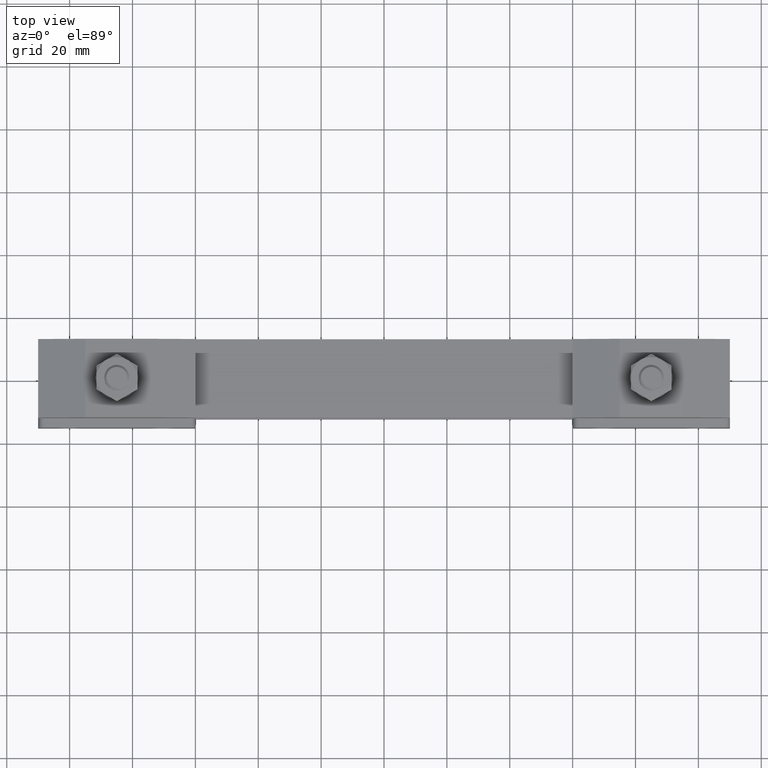
[diagram: clean part render]
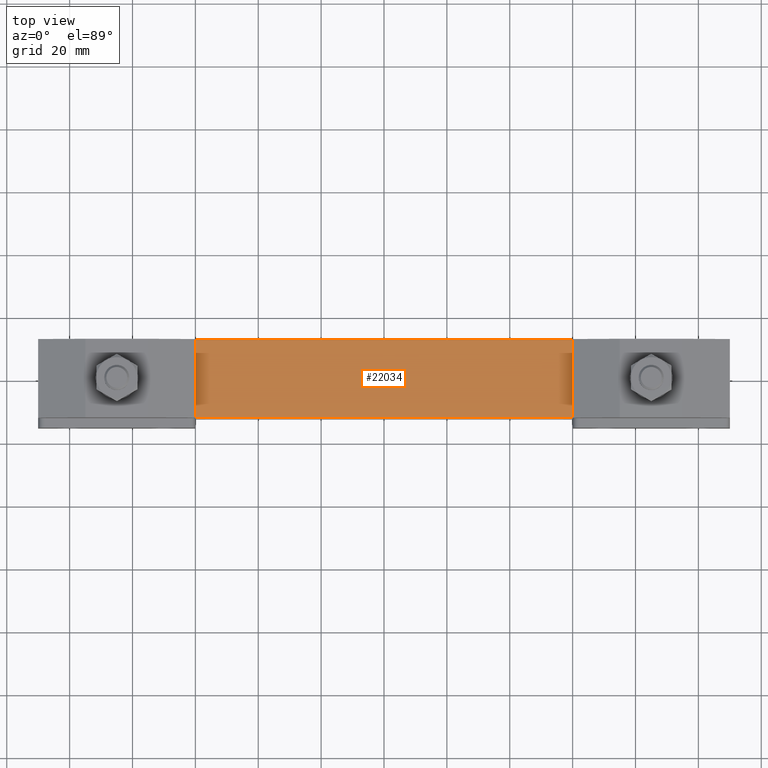
[diagram: same view with one face highlighted and labeled with its STEP entity id]
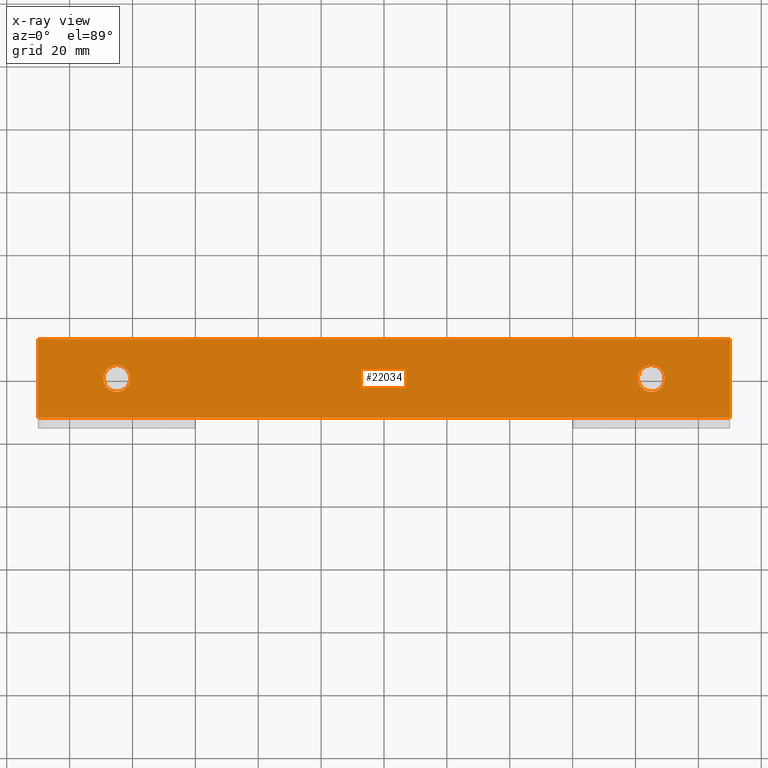
[diagram: x-ray of the same camera — body ghosted, the highlighted face saturated]
A machine part, top view. The second image highlights one B-rep face of the part: STEP entity #22034.
The next image is the same camera in x-ray: the body ghosted, the highlighted face saturated — about 0% of this face is hidden behind the body in this view.
In plain terms, the highlighted planar face has unit normal (-0, 0, 1).
Its self-contained STEP definition (entity closure, byte-faithful):
#78 = VERTEX_POINT ( 'NONE', #4701 ) ;
#457 = ORIENTED_EDGE ( 'NONE', *, *, #20719, .T. ) ;
#890 = LINE ( 'NONE', #21276, #17175 ) ;
#1092 = ORIENTED_EDGE ( 'NONE', *, *, #9061, .T. ) ;
#1437 = ORIENTED_EDGE ( 'NONE', *, *, #14394, .T. ) ;
#2002 = DIRECTION ( 'NONE',  ( -0.0000000000000000000, 1.000000000000000000, -0.0000000000000000000 ) ) ;
#2199 = VERTEX_POINT ( 'NONE', #15431 ) ;
#2761 = VERTEX_POINT ( 'NONE', #11864 ) ;
#4155 = DIRECTION ( 'NONE',  ( -1.000000000000000000, 0.0000000000000000000, 0.0000000000000000000 ) ) ;
#4263 = VECTOR ( 'NONE', #2002, 1000.000000000000000 ) ;
#4589 = CARTESIAN_POINT ( 'NONE',  ( -109.9999999999999900, 12.49999999999999300, 28.49999999999997900 ) ) ;
#4701 = CARTESIAN_POINT ( 'NONE',  ( -109.9999999999999900, -12.50000000000000700, 28.49999999999997900 ) ) ;
#4772 = DIRECTION ( 'NONE',  ( 0.0000000000000000000, -1.000000000000000000, 0.0000000000000000000 ) ) ;
#5234 = PLANE ( 'NONE',  #8122 ) ;
#5383 = DIRECTION ( 'NONE',  ( 1.000000000000000000, 0.0000000000000000000, 0.0000000000000000000 ) ) ;
#5460 = VECTOR ( 'NONE', #16796, 1000.000000000000000 ) ;
#6596 = CARTESIAN_POINT ( 'NONE',  ( 89.25000000000001400, 2.133878290461803800E-014, 28.49999999999997900 ) ) ;
#7063 = CARTESIAN_POINT ( 'NONE',  ( -109.9999999999999900, -12.50000000000000700, 28.49999999999997900 ) ) ;
#7719 = VERTEX_POINT ( 'NONE', #6596 ) ;
#8122 = AXIS2_PLACEMENT_3D ( 'NONE', #7063, #20850, #10482 ) ;
#8968 = ORIENTED_EDGE ( 'NONE', *, *, #16979, .T. ) ;
#9061 = EDGE_CURVE ( 'NONE', #2761, #13472, #19488, .T. ) ;
#9215 = CIRCLE ( 'NONE', #18890, 4.250000000000003600 ) ;
#9564 = EDGE_CURVE ( 'NONE', #18194, #2199, #19732, .T. ) ;
#9833 = DIRECTION ( 'NONE',  ( -0.0000000000000000000, -0.0000000000000000000, -1.000000000000000000 ) ) ;
#10178 = DIRECTION ( 'NONE',  ( -1.000000000000000000, 0.0000000000000000000, 0.0000000000000000000 ) ) ;
#10482 = DIRECTION ( 'NONE',  ( 1.000000000000000000, 0.0000000000000000000, 0.0000000000000000000 ) ) ;
#11477 = FACE_BOUND ( 'NONE', #20049, .T. ) ;
#11586 = CARTESIAN_POINT ( 'NONE',  ( -109.9999999999999900, 12.49999999999999300, 28.49999999999997900 ) ) ;
#11864 = CARTESIAN_POINT ( 'NONE',  ( -80.74999999999997200, 5.204748896376255600E-016, 28.49999999999997900 ) ) ;
#11997 = DIRECTION ( 'NONE',  ( -0.0000000000000000000, -0.0000000000000000000, -1.000000000000000000 ) ) ;
#12950 = EDGE_LOOP ( 'NONE', ( #8968, #22050 ) ) ;
#13291 = AXIS2_PLACEMENT_3D ( 'NONE', #16076, #14548, #4155 ) ;
#13472 = VERTEX_POINT ( 'NONE', #21053 ) ;
#13723 = DIRECTION ( 'NONE',  ( -1.000000000000000000, 0.0000000000000000000, 0.0000000000000000000 ) ) ;
#13884 = CARTESIAN_POINT ( 'NONE',  ( 85.00000000000000000, 2.081830801498041300E-014, 28.49999999999997900 ) ) ;
#14109 = CIRCLE ( 'NONE', #19033, 4.250000000000003600 ) ;
#14213 = CIRCLE ( 'NONE', #16534, 4.250000000000003600 ) ;
#14394 = EDGE_CURVE ( 'NONE', #78, #18194, #890, .T. ) ;
#14548 = DIRECTION ( 'NONE',  ( -0.0000000000000000000, -0.0000000000000000000, -1.000000000000000000 ) ) ;
#15217 = LINE ( 'NONE', #4589, #5460 ) ;
#15218 = CARTESIAN_POINT ( 'NONE',  ( -84.99999999999997200, 0.0000000000000000000, 28.49999999999997900 ) ) ;
#15293 = ORIENTED_EDGE ( 'NONE', *, *, #15810, .T. ) ;
#15431 = CARTESIAN_POINT ( 'NONE',  ( 110.0000000000000100, 12.49999999999999300, 28.49999999999997900 ) ) ;
#15810 = EDGE_CURVE ( 'NONE', #2199, #21450, #15217, .T. ) ;
#16076 = CARTESIAN_POINT ( 'NONE',  ( -84.99999999999997200, 0.0000000000000000000, 28.49999999999997900 ) ) ;
#16394 = EDGE_CURVE ( 'NONE', #7719, #17581, #14109, .T. ) ;
#16534 = AXIS2_PLACEMENT_3D ( 'NONE', #15218, #9833, #22185 ) ;
#16796 = DIRECTION ( 'NONE',  ( -1.000000000000000000, -0.0000000000000000000, -0.0000000000000000000 ) ) ;
#16853 = FACE_OUTER_BOUND ( 'NONE', #19960, .T. ) ;
#16979 = EDGE_CURVE ( 'NONE', #17581, #7719, #9215, .T. ) ;
#16983 = CARTESIAN_POINT ( 'NONE',  ( -109.9999999999999900, 12.49999999999999300, 28.49999999999997900 ) ) ;
#17175 = VECTOR ( 'NONE', #5383, 1000.000000000000000 ) ;
#17542 = CARTESIAN_POINT ( 'NONE',  ( 80.75000000000000000, 2.081830801498041300E-014, 28.49999999999997900 ) ) ;
#17581 = VERTEX_POINT ( 'NONE', #17542 ) ;
#18194 = VERTEX_POINT ( 'NONE', #18848 ) ;
#18420 = ORIENTED_EDGE ( 'NONE', *, *, #21901, .T. ) ;
#18848 = CARTESIAN_POINT ( 'NONE',  ( 110.0000000000000100, -12.50000000000000700, 28.49999999999997900 ) ) ;
#18890 = AXIS2_PLACEMENT_3D ( 'NONE', #22435, #11997, #13723 ) ;
#19033 = AXIS2_PLACEMENT_3D ( 'NONE', #13884, #22547, #10178 ) ;
#19488 = CIRCLE ( 'NONE', #13291, 4.250000000000003600 ) ;
#19732 = LINE ( 'NONE', #21269, #4263 ) ;
#19960 = EDGE_LOOP ( 'NONE', ( #18420, #1437, #21155, #15293 ) ) ;
#20049 = EDGE_LOOP ( 'NONE', ( #457, #1092 ) ) ;
#20669 = VECTOR ( 'NONE', #4772, 1000.000000000000000 ) ;
#20719 = EDGE_CURVE ( 'NONE', #13472, #2761, #14213, .T. ) ;
#20850 = DIRECTION ( 'NONE',  ( -0.0000000000000000000, 0.0000000000000000000, 1.000000000000000000 ) ) ;
#21053 = CARTESIAN_POINT ( 'NONE',  ( -89.24999999999998600, 0.0000000000000000000, 28.49999999999997900 ) ) ;
#21155 = ORIENTED_EDGE ( 'NONE', *, *, #9564, .T. ) ;
#21199 = FACE_BOUND ( 'NONE', #12950, .T. ) ;
#21269 = CARTESIAN_POINT ( 'NONE',  ( 110.0000000000000100, 12.49999999999999300, 28.49999999999997900 ) ) ;
#21276 = CARTESIAN_POINT ( 'NONE',  ( -109.9999999999999900, -12.50000000000000700, 28.49999999999997900 ) ) ;
#21450 = VERTEX_POINT ( 'NONE', #11586 ) ;
#21744 = LINE ( 'NONE', #16983, #20669 ) ;
#21901 = EDGE_CURVE ( 'NONE', #21450, #78, #21744, .T. ) ;
#22034 = ADVANCED_FACE ( 'NONE', ( #16853, #21199, #11477 ), #5234, .T. ) ;
#22050 = ORIENTED_EDGE ( 'NONE', *, *, #16394, .T. ) ;
#22185 = DIRECTION ( 'NONE',  ( -1.000000000000000000, 0.0000000000000000000, 0.0000000000000000000 ) ) ;
#22435 = CARTESIAN_POINT ( 'NONE',  ( 85.00000000000000000, 2.081830801498041300E-014, 28.49999999999997900 ) ) ;
#22547 = DIRECTION ( 'NONE',  ( -0.0000000000000000000, -0.0000000000000000000, -1.000000000000000000 ) ) ;